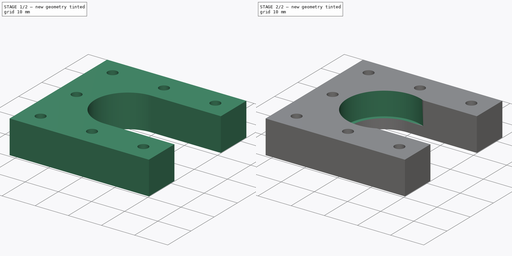
[diagram: build sequence overview — one tinted view per stage of 2, left to right]
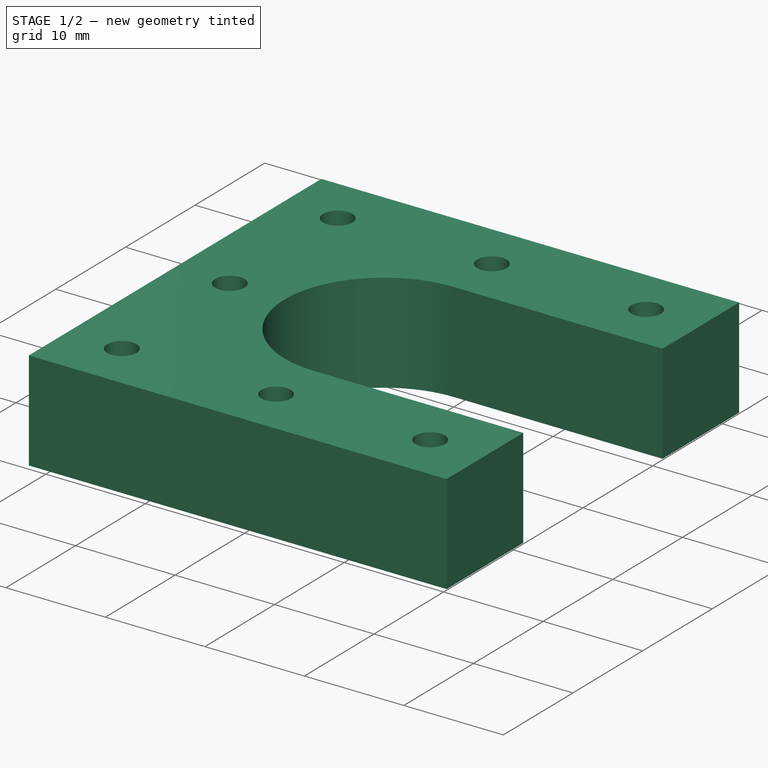
[diagram: stage 1 of 2 — iso view after this stage's code; geometry added in this stage tinted green]
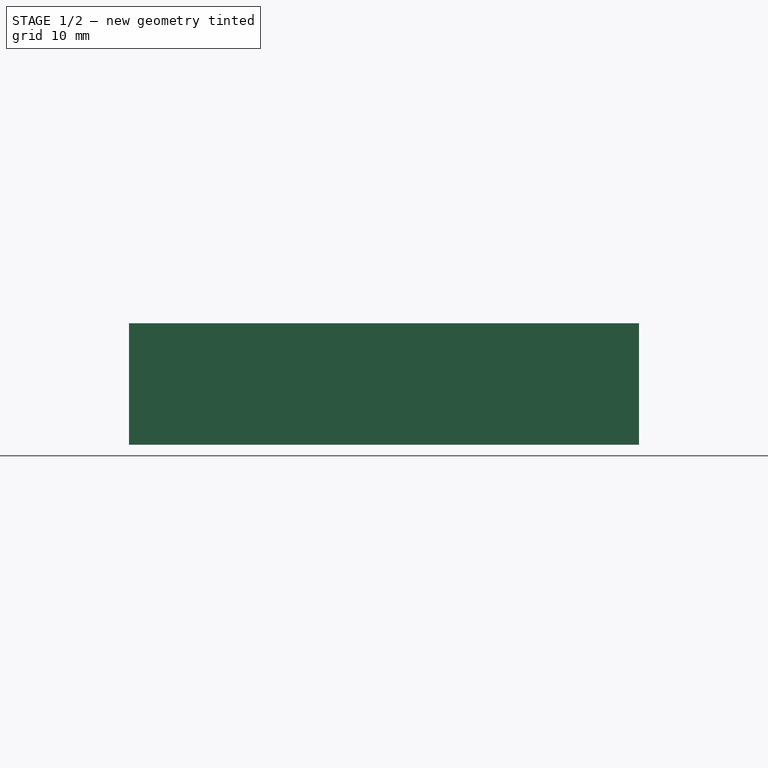
[diagram: stage 1 of 2 — front view after this stage's code; geometry added in this stage tinted green]
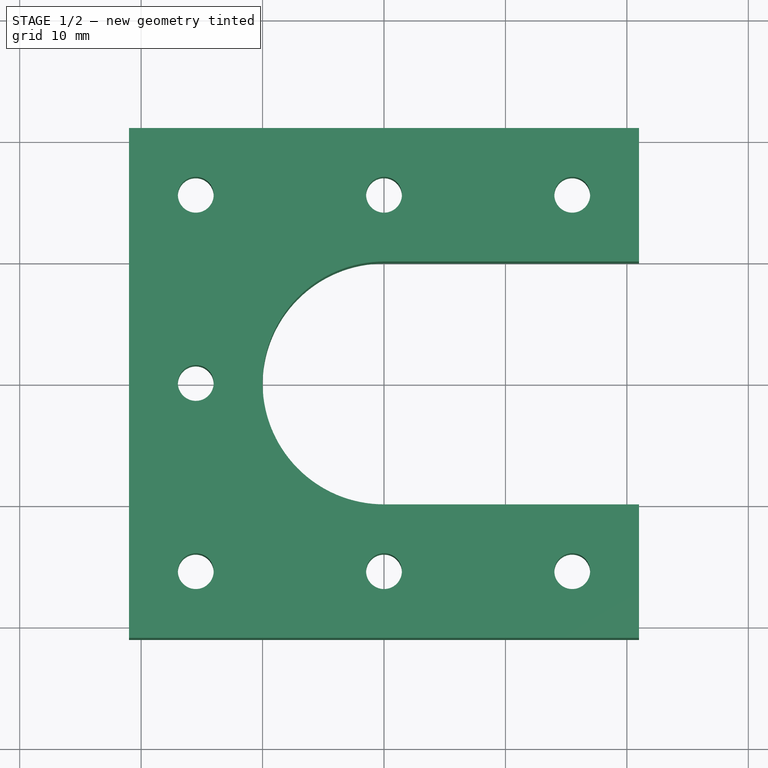
[diagram: stage 1 of 2 — top view after this stage's code; geometry added in this stage tinted green]
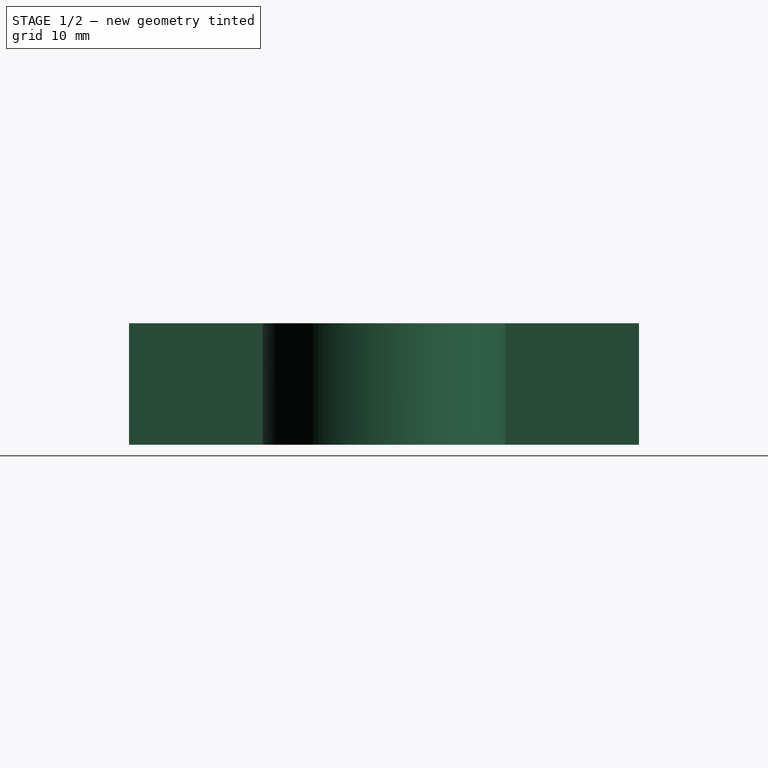
[diagram: stage 1 of 2 — right view after this stage's code; geometry added in this stage tinted green]
FCSTD DOCUMENT  (FreeCAD 0.19R23463 (Git))
Label: eje_X_belt_tensioner
License: All rights reserved
LicenseURL: http://en.wikipedia.org/wiki/All_rights_reserved
objects: Sketcher::SketchObject×3, PartDesign::Pocket×2, PartDesign::Pad×1, Spreadsheet::Sheet×1, PartDesign::Plane×1, PartDesign::Body×1
note: 11 computed .brp shape members not serialized (recipe doc carries the construction recipe); baked Part::Feature solids carry a one-line shape summary decoded from their .brp

FEATURE [Sketcher::SketchObject] Sketch004  label="base_stepper_sketch"
  MapMode = 5
  Support = -> [XY_Plane003]
  expr: Constraints[14] = <<xstepper>>.A1
  expr: Constraints[11] = <<xstepper>>.A2
  expr: Constraints[51] = <<xstepper>>.A3
  expr: Constraints[5] = <<xstepper>>.A4
  sketch-geometry (22):
    g0: LineSegment StartX=-21 StartY=21 StartZ=0 EndX=21 EndY=21 EndZ=0
    g1: LineSegment StartX=21 StartY=-21 StartZ=0 EndX=-21 EndY=-21 EndZ=0
    g2: LineSegment StartX=-21 StartY=-21 StartZ=0 EndX=-21 EndY=21 EndZ=0
    g3: LineSegment StartX=-21 StartY=-21 StartZ=0 EndX=21 EndY=21 EndZ=0
    g4: LineSegment StartX=21 StartY=-21 StartZ=0 EndX=-21 EndY=21 EndZ=0
    g5: GeomPoint X=0 Y=0 Z=0
    g6: Circle CenterX=-15.5 CenterY=15.5 CenterZ=0 NormalX=0 NormalY=0 NormalZ=1 AngleXU=0 Radius=1.475
    g7: Circle CenterX=15.5 CenterY=15.5 CenterZ=0 NormalX=0 NormalY=0 NormalZ=1 AngleXU=0 Radius=1.475
    g8: LineSegment StartX=-15.5 StartY=15.5 StartZ=0 EndX=15.5 EndY=15.5 EndZ=0
    g9: Circle CenterX=-15.5 CenterY=-15.5 CenterZ=0 NormalX=0 NormalY=0 NormalZ=1 AngleXU=0 Radius=1.475
    g10: LineSegment StartX=-15.5 StartY=15.5 StartZ=0 EndX=-15.5 EndY=-15.5 EndZ=0
    g11: Circle CenterX=15.5 CenterY=-15.5 CenterZ=0 NormalX=0 NormalY=0 NormalZ=1 AngleXU=0 Radius=1.475
    g12: LineSegment StartX=-15.5 StartY=-15.5 StartZ=0 EndX=15.5 EndY=-15.5 EndZ=0
    g13: Circle CenterX=-15.5 CenterY=0 CenterZ=0 NormalX=0 NormalY=0 NormalZ=1 AngleXU=0 Radius=1.475
    g14: Circle CenterX=0 CenterY=15.5 CenterZ=0 NormalX=0 NormalY=0 NormalZ=1 AngleXU=0 Radius=1.475
    g15: Circle CenterX=0 CenterY=-15.5 CenterZ=0 NormalX=0 NormalY=0 NormalZ=1 AngleXU=0 Radius=1.475
    g16: ArcOfCircle CenterX=0 CenterY=0 CenterZ=0 NormalX=0 NormalY=0 NormalZ=1 AngleXU=0 Radius=10 StartAngle=1.5708 EndAngle=4.71239
    g17: LineSegment StartX=21 StartY=21 StartZ=0 EndX=21 EndY=10 EndZ=0
    g18: LineSegment StartX=21 StartY=10 StartZ=0 EndX=0 EndY=10 EndZ=0
    g19: LineSegment StartX=21 StartY=-21 StartZ=0 EndX=21 EndY=-10 EndZ=0
    g20: LineSegment StartX=21 StartY=-10 StartZ=0 EndX=-3.6e-15 EndY=-10 EndZ=0
    g21: LineSegment StartX=21 StartY=10 StartZ=0 EndX=21 EndY=-10 EndZ=0
  constraints (58):
    c: Coincident(g1,g2)
    c: Coincident(g2,g0)
    c: Horizontal(g0)
    c: Horizontal(g1)
    c: Vertical(g2)
    c: DistanceX(g1,g1) = 42
    c: Coincident(g3,g1)
    c: Coincident(g3,g0)
    c: Coincident(g4,g0)
    c: PointOnObject(g5,g3)
    c: PointOnObject(g5,g4)
    c: Diameter(g6) = 2.95
    c: Coincident(g6,g8)
    c: Coincident(g7,g8)
    c: Distance(g8) = 31
    c: Coincident(g6,g10)
    c: Coincident(g9,g10)
    c: Equal(g10,g8)
    c: Perpendicular(g10,g8)
    c: Coincident(g9,g12)
    c: Coincident(g11,g12)
    c: Equal(g8,g12)
    c: Parallel(g12,g8)
    c: Horizontal(g8)
    c: PointOnObject(g6,g4)
    c: PointOnObject(g7,g3)
    c: PointOnObject(g13,g10)
    c: PointOnObject(g14,g8)
    c: PointOnObject(g15,g12)
    c: PointOnObject(g15,g-2)
    c: PointOnObject(g14,g-2)
    c: PointOnObject(g13,g-1)
    c: Equal(g13,g14)
    c: Equal(g14,g15)
    c: Equal(g15,g7)
    c: Equal(g15,g9)
    c: Equal(g9,g11)
    c: Equal(g7,g6)
    c: Coincident(g16,g5)
    c: PointOnObject(g16,g-2)
    c: PointOnObject(g16,g-2)
    c: Coincident(g0,g17)
    c: Vertical(g17)
    c: Coincident(g17,g18)
    c: Coincident(g18,g16)
    c: Horizontal(g18)
    c: Coincident(g1,g19)
    c: Vertical(g19)
    c: Coincident(g19,g20)
    c: Coincident(g20,g16)
    c: Horizontal(g20)
    c: Diameter(g16) = 20
    c: Coincident(g5,g-1)
    c: Coincident(g21,g19)
    c: Coincident(g21,g17)
    c: Equal(g17,g19)
    c: Coincident(g4,g1)
    c: PointOnObject(g9,g3)
FEATURE [PartDesign::Pad] Pad003  label="base_stepper_pad"
  AllowMultiFace = false
  Direction = (1,1,1)
  Length = 10
  Length2 = 100
  Profile = -> Sketch004
  Type = 0
  expr: Length = <<xstepper>>.A8
FEATURE [Spreadsheet::Sheet] Spreadsheet  label="xstepper"
  cells = A1==31mm; B1=distancia centro a centro; C1= agujeros stepper; A2==2.95mm; B2=diametro; C2=agujero tornillos stepper; D2==5.32mm + 0.2mm; E2=diametro; F2=cabeza tornillo M3 con 0.2 tol; A3==20mm; B3=agujero para polea; C3=Gt2 20 dientes; D3==3mm; E3=profundidad; F3=hueco cabeza tornillos M3; A4==42mm; B4=ancho ; C4=lado stepper; D4==42mm + 2mm; E4=ancho; F4=lado stepper con tolerancia (2 mm); A6==50mm; B6=alto; C6=stepper; A8==10mm; B8=altura; C8=base stepper; A10==22mm; B10=diametro; C10=ruleman; D10==A10 + 0.2mm; E10=diametro; F10=cilindro protrusion del NEMA 17 (con tol 0.2 mm); A11==7mm; B11=profundidad; C11=hueco para ruleman (en total mide 8 mm de alto)
FEATURE [Sketcher::SketchObject] Sketch009  label="huecos_tornillos_stepper"
  MapMode = 5
  Support = -> [XY_Plane003]
  expr: Constraints[14] = <<xstepper>>.A1
  expr: Constraints[11] = <<xstepper>>.D2
  expr: Constraints[51] = <<xstepper>>.A3
  expr: Constraints[5] = <<xstepper>>.A4
  sketch-geometry (22):
    g0: LineSegment StartX=-21 StartY=21 StartZ=0 EndX=21 EndY=21 EndZ=0
    g1: LineSegment StartX=21 StartY=-21 StartZ=0 EndX=-21 EndY=-21 EndZ=0
    g2: LineSegment StartX=-21 StartY=-21 StartZ=0 EndX=-21 EndY=21 EndZ=0
    g3: LineSegment StartX=-21 StartY=-21 StartZ=0 EndX=21 EndY=21 EndZ=0
    g4: LineSegment StartX=21 StartY=-21 StartZ=0 EndX=-21 EndY=21 EndZ=0
    g5: GeomPoint X=0 Y=0 Z=0
    g6: Circle CenterX=-15.5 CenterY=15.5 CenterZ=0 NormalX=0 NormalY=0 NormalZ=1 AngleXU=0 Radius=2.76
    g7: Circle CenterX=15.5 CenterY=15.5 CenterZ=0 NormalX=0 NormalY=0 NormalZ=1 AngleXU=0 Radius=2.76
    g8: LineSegment StartX=-15.5 StartY=15.5 StartZ=0 EndX=15.5 EndY=15.5 EndZ=0
    g9: Circle CenterX=-15.5 CenterY=-15.5 CenterZ=0 NormalX=0 NormalY=0 NormalZ=1 AngleXU=0 Radius=2.76
    g10: LineSegment StartX=-15.5 StartY=15.5 StartZ=0 EndX=-15.5 EndY=-15.5 EndZ=0
    g11: Circle CenterX=15.5 CenterY=-15.5 CenterZ=0 NormalX=0 NormalY=0 NormalZ=1 AngleXU=0 Radius=2.76
    g12: LineSegment StartX=-15.5 StartY=-15.5 StartZ=0 EndX=15.5 EndY=-15.5 EndZ=0
    g13: Circle CenterX=-15.5 CenterY=0 CenterZ=0 NormalX=0 NormalY=0 NormalZ=1 AngleXU=0 Radius=2.76
    g14: Circle CenterX=0 CenterY=15.5 CenterZ=0 NormalX=0 NormalY=0 NormalZ=1 AngleXU=0 Radius=2.76
    g15: Circle CenterX=0 CenterY=-15.5 CenterZ=0 NormalX=0 NormalY=0 NormalZ=1 AngleXU=0 Radius=2.76
    g16: ArcOfCircle CenterX=0 CenterY=0 CenterZ=0 NormalX=0 NormalY=0 NormalZ=1 AngleXU=0 Radius=10 StartAngle=1.5708 EndAngle=4.71239
    g17: LineSegment StartX=21 StartY=21 StartZ=0 EndX=21 EndY=10 EndZ=0
    g18: LineSegment StartX=21 StartY=10 StartZ=0 EndX=0 EndY=10 EndZ=0
    g19: LineSegment StartX=21 StartY=-21 StartZ=0 EndX=21 EndY=-10 EndZ=0
    g20: LineSegment StartX=21 StartY=-10 StartZ=0 EndX=-3.6e-15 EndY=-10 EndZ=0
    g21: LineSegment StartX=21 StartY=10 StartZ=0 EndX=21 EndY=-10 EndZ=0
  constraints (58):
    c: Coincident(g1,g2)
    c: Coincident(g2,g0)
    c: Horizontal(g0)
    c: Horizontal(g1)
    c: Vertical(g2)
    c: DistanceX(g1,g1) = 42
    c: Coincident(g3,g1)
    c: Coincident(g3,g0)
    c: Coincident(g4,g0)
    c: PointOnObject(g5,g3)
    c: PointOnObject(g5,g4)
    c: Diameter(g6) = 5.52
    c: Coincident(g6,g8)
    c: Coincident(g7,g8)
    c: Distance(g8) = 31
    c: Coincident(g6,g10)
    c: Coincident(g9,g10)
    c: Equal(g10,g8)
    c: Perpendicular(g10,g8)
    c: Coincident(g9,g12)
    c: Coincident(g11,g12)
    c: Equal(g8,g12)
    c: Parallel(g12,g8)
    c: Horizontal(g8)
    c: PointOnObject(g6,g4)
    c: PointOnObject(g7,g3)
    c: PointOnObject(g13,g10)
    c: PointOnObject(g14,g8)
    c: PointOnObject(g15,g12)
    c: PointOnObject(g15,g-2)
    c: PointOnObject(g14,g-2)
    c: PointOnObject(g13,g-1)
    c: Equal(g13,g14)
    c: Equal(g14,g15)
    c: Equal(g15,g7)
    c: Equal(g15,g9)
    c: Equal(g9,g11)
    c: Equal(g7,g6)
    c: Coincident(g16,g5)
    c: PointOnObject(g16,g-2)
    c: PointOnObject(g16,g-2)
    c: Coincident(g0,g17)
    c: Vertical(g17)
    c: Coincident(g17,g18)
    c: Coincident(g18,g16)
    c: Horizontal(g18)
    c: Coincident(g1,g19)
    c: Vertical(g19)
    c: Coincident(g19,g20)
    c: Coincident(g20,g16)
    c: Horizontal(g20)
    c: Diameter(g16) = 20
    c: Coincident(g5,g-1)
    c: Coincident(g21,g19)
    c: Coincident(g21,g17)
    c: Equal(g17,g19)
    c: Coincident(g4,g1)
    c: PointOnObject(g9,g3)
FEATURE [PartDesign::Pocket] Pocket002  label="pad_huecos_tornillos_stepper"
  AllowMultiFace = false
  BaseFeature = -> Pad003
  Length = 3
  Length2 = 100
  Profile = -> Sketch009
  Reversed = true
  Type = 0
  expr: Length = <<xstepper>>.D3
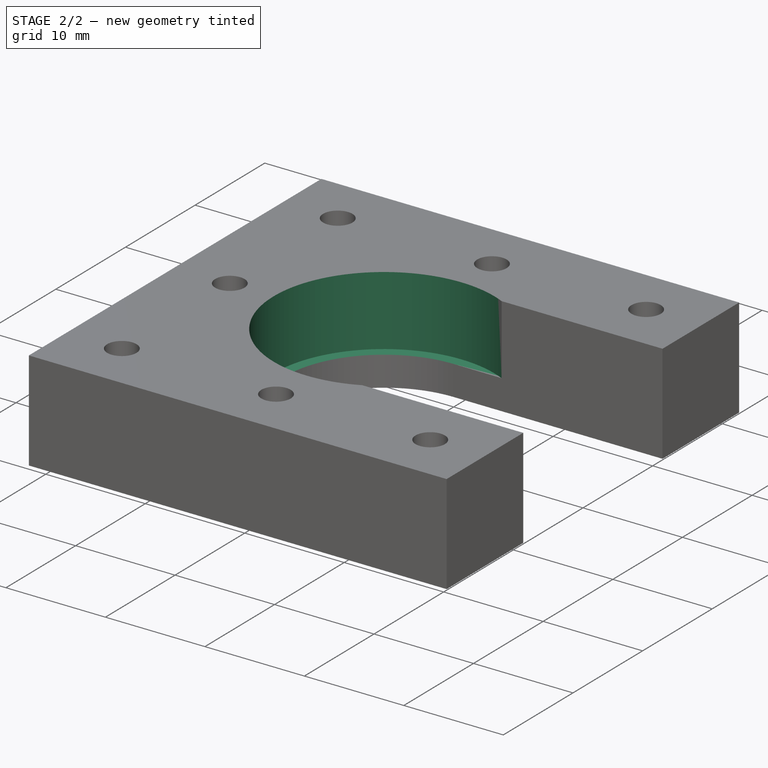
[diagram: stage 2 of 2 — iso view after this stage's code; geometry added in this stage tinted green]
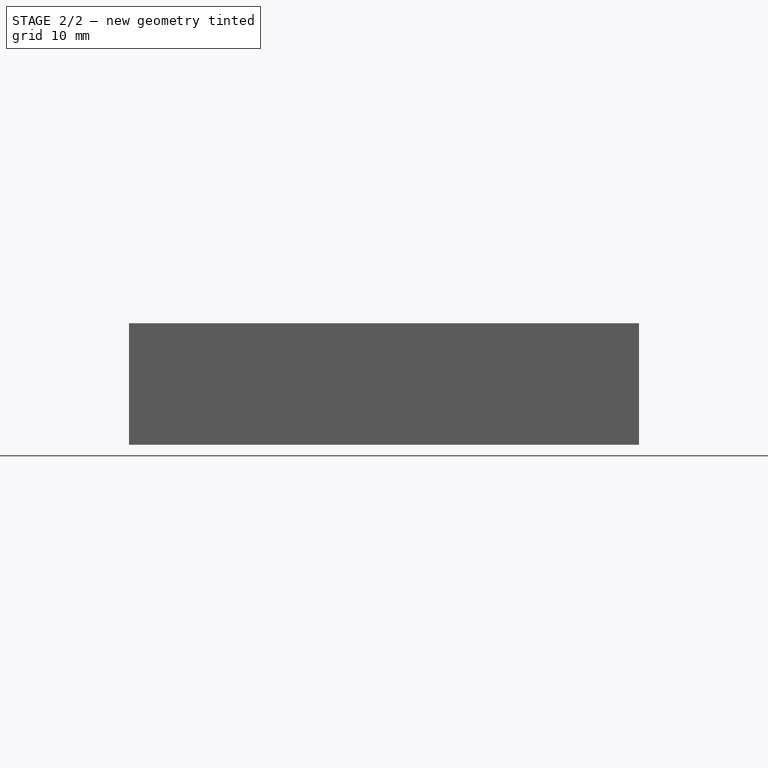
[diagram: stage 2 of 2 — front view after this stage's code; geometry added in this stage tinted green]
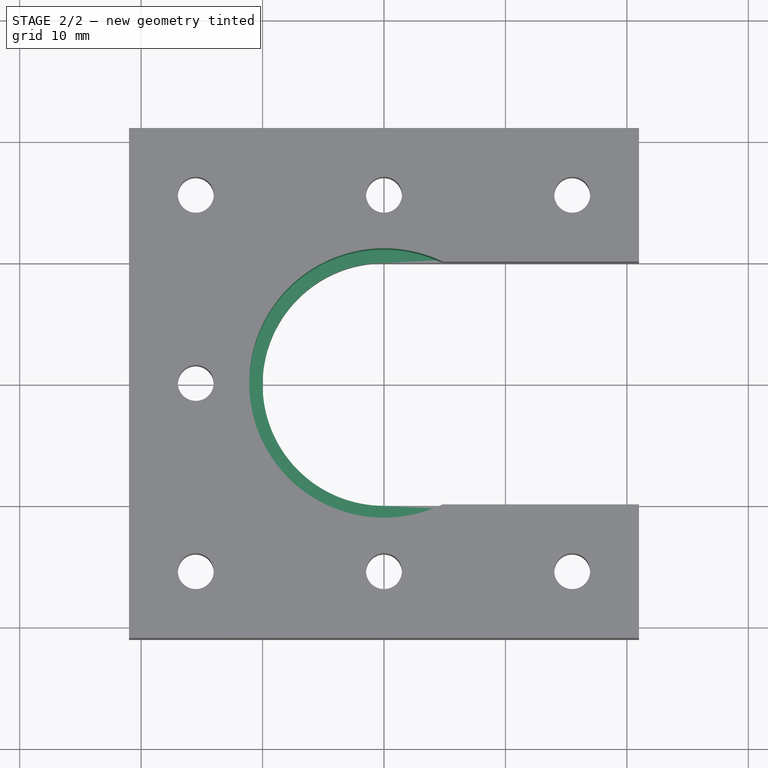
[diagram: stage 2 of 2 — top view after this stage's code; geometry added in this stage tinted green]
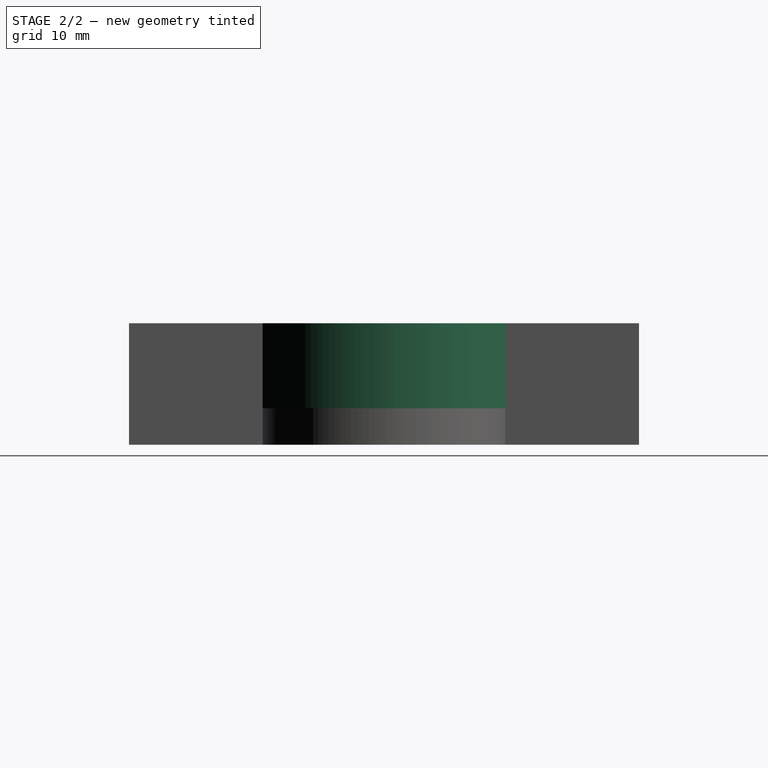
[diagram: stage 2 of 2 — right view after this stage's code; geometry added in this stage tinted green]
FEATURE [PartDesign::Plane] DatumPlane
  Length = 60
  MapMode = 5
  Placement = pos=(0,0,10) rot=(0,0,1;0rad)
  ResizeMode = 0
  Support = -> [Pocket002]
  Width = 60
FEATURE [Sketcher::SketchObject] Sketch014
  MapMode = 5
  Placement = pos=(0,0,10) rot=(0,0,1;0rad)
  Support = -> [Pocket002]
  expr: Constraints[1] = <<xstepper>>.D10
  sketch-geometry (1):
    g0: Circle CenterX=0 CenterY=0 CenterZ=0 NormalX=0 NormalY=0 NormalZ=1 AngleXU=0 Radius=11.1
  constraints (2):
    c: Coincident(g0,g-1)
    c: Diameter(g0) = 22.2
FEATURE [PartDesign::Pocket] Pocket006
  AllowMultiFace = false
  BaseFeature = -> Pocket002
  Length = 7
  Length2 = 100
  Profile = -> Sketch014
  Type = 0
  expr: Length = <<xstepper>>.A11
FEATURE [PartDesign::Body] Body003  label="base stepper correa"
  Group = -> [Sketch004,Pad003,Sketch009,Pocket002,DatumPlane,Sketch014,Pocket006]
  Origin = -> Origin003
  Tip = -> Pocket006
  expr: .Placement.Base.x = 0
  expr: .Placement.Base.y = 0
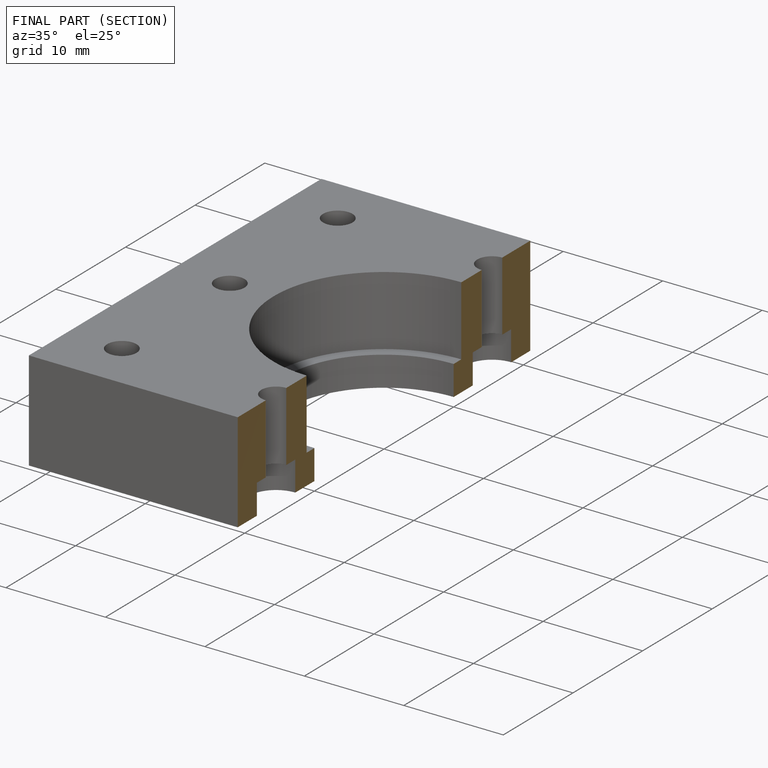
[diagram: finished part — half-section view (interior)]
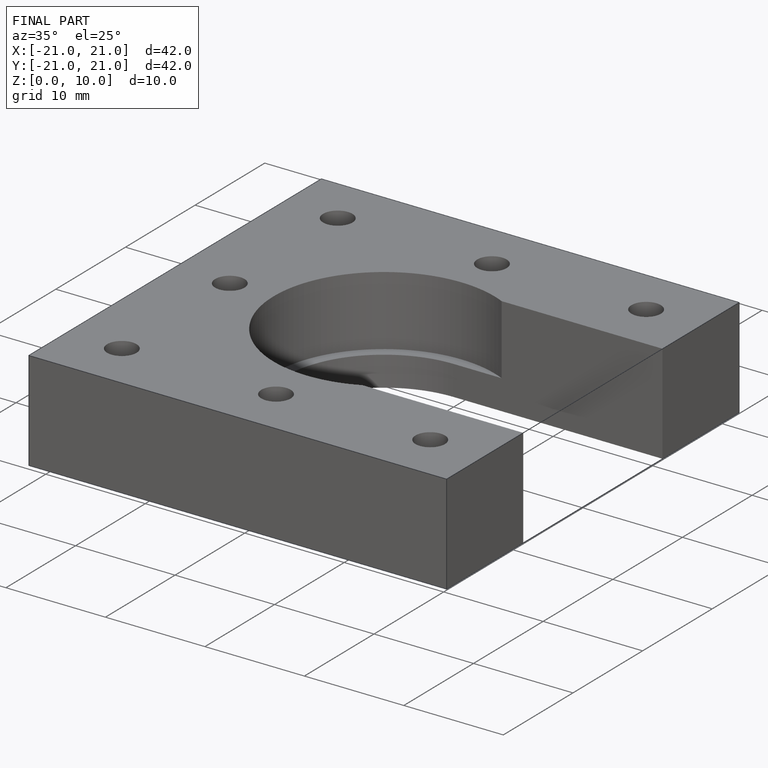
[diagram: finished part — iso view with bounding-box wireframe]
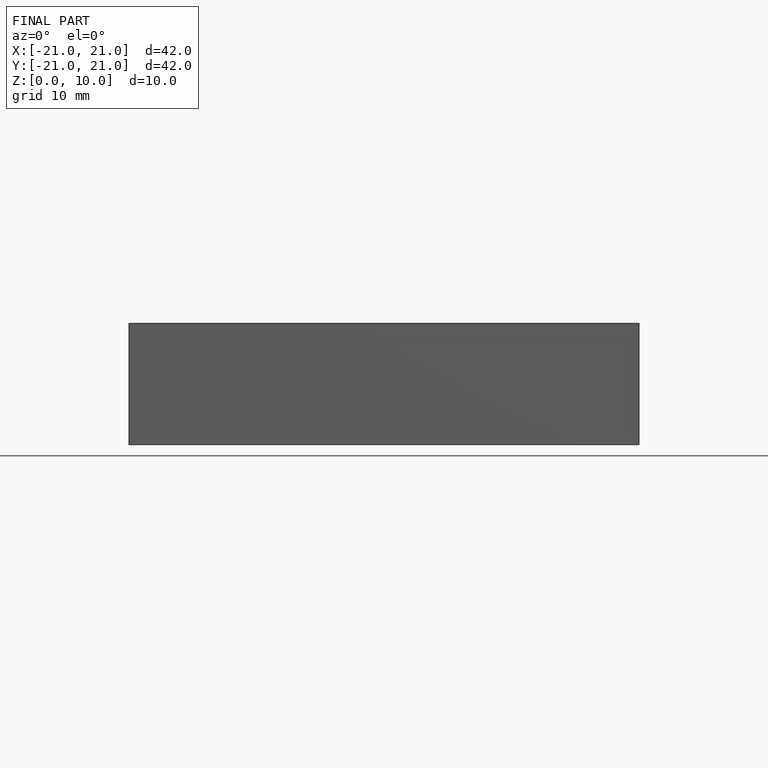
[diagram: finished part — front view with bounding-box wireframe]
